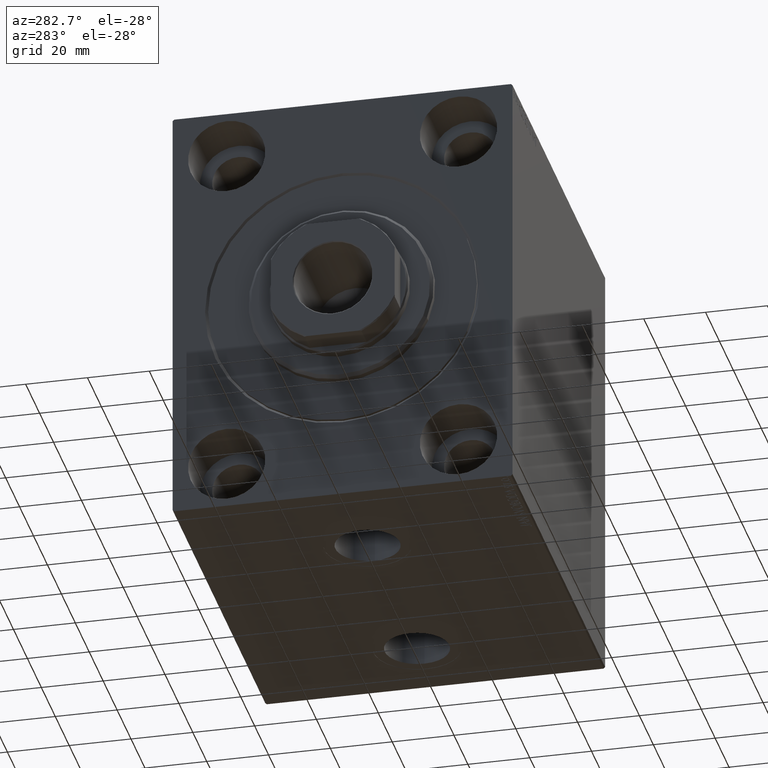
[diagram: clean part render]
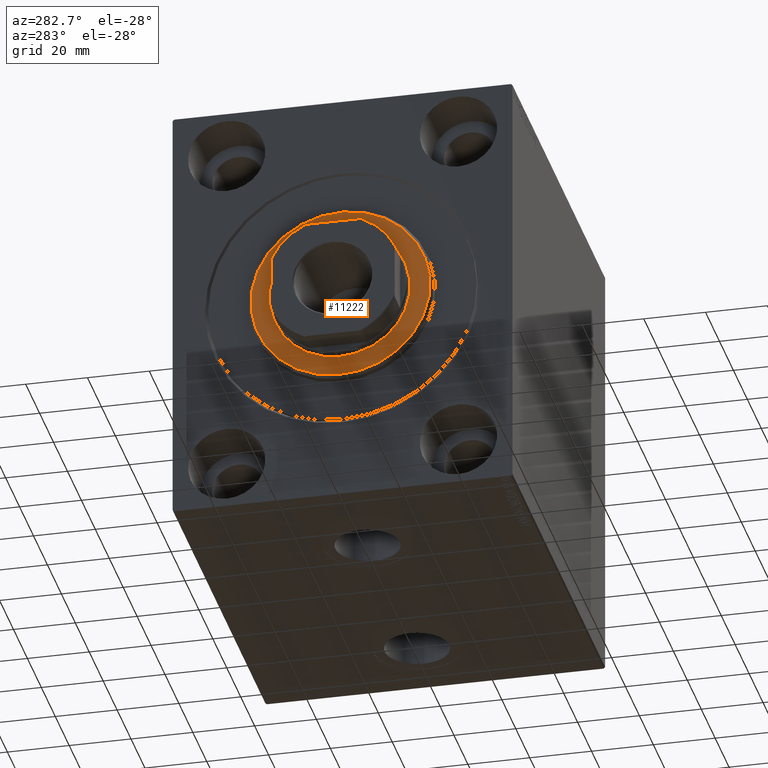
[diagram: same view with one face highlighted and labeled with its STEP entity id]
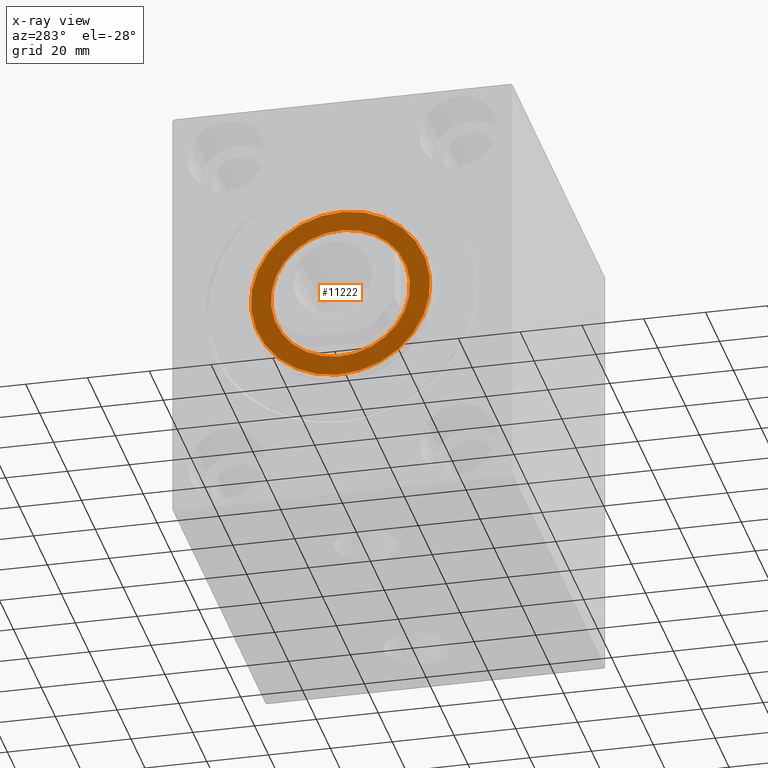
[diagram: x-ray of the same camera — body ghosted, the highlighted face saturated]
A machine part, auxiliary view. The second image highlights one B-rep face of the part: STEP entity #11222.
The next image is the same camera in x-ray: the body ghosted, the highlighted face saturated — about 0% of this face is hidden behind the body in this view.
In plain terms, the highlighted planar face has unit normal (-1, 0, 0).
Its self-contained STEP definition (entity closure, byte-faithful):
#62 = ORIENTED_EDGE ( 'NONE', *, *, #27249, .T. ) ;
#554 = EDGE_CURVE ( 'NONE', #34323, #2561, #41616, .T. ) ;
#1107 = DIRECTION ( 'NONE',  ( 0.000000000000000000, 0.000000000000000000, -1.000000000000000000 ) ) ;
#1869 = CARTESIAN_POINT ( 'NONE',  ( 3.000000000000000000, 0.000000000000000000, 0.000000000000000000 ) ) ;
#1995 = DIRECTION ( 'NONE',  ( 1.000000000000000000, -0.000000000000000000, 0.000000000000000000 ) ) ;
#2561 = VERTEX_POINT ( 'NONE', #41532 ) ;
#2911 = ORIENTED_EDGE ( 'NONE', *, *, #554, .T. ) ;
#3327 = EDGE_CURVE ( 'NONE', #19603, #23479, #18157, .T. ) ;
#8221 = CARTESIAN_POINT ( 'NONE',  ( 3.000000000000000000, 0.000000000000000000, 0.000000000000000000 ) ) ;
#10564 = CARTESIAN_POINT ( 'NONE',  ( 3.000000000000000000, 0.000000000000000000, 0.000000000000000000 ) ) ;
#11222 = ADVANCED_FACE ( 'NONE', ( #33734, #27937 ), #31261, .T. ) ;
#12705 = AXIS2_PLACEMENT_3D ( 'NONE', #22331, #25891, #28800 ) ;
#13378 = AXIS2_PLACEMENT_3D ( 'NONE', #10564, #31030, #14113 ) ;
#13758 = AXIS2_PLACEMENT_3D ( 'NONE', #8221, #1995, #1107 ) ;
#14113 = DIRECTION ( 'NONE',  ( 0.000000000000000000, 0.000000000000000000, -1.000000000000000000 ) ) ;
#15434 = DIRECTION ( 'NONE',  ( 1.000000000000000000, -0.000000000000000000, 0.000000000000000000 ) ) ;
#17114 = EDGE_CURVE ( 'NONE', #23479, #19603, #38335, .T. ) ;
#18116 = DIRECTION ( 'NONE',  ( 0.000000000000000000, 0.000000000000000000, -1.000000000000000000 ) ) ;
#18157 = CIRCLE ( 'NONE', #43044, 22.50000000000000355 ) ;
#19603 = VERTEX_POINT ( 'NONE', #24701 ) ;
#20974 = AXIS2_PLACEMENT_3D ( 'NONE', #1869, #15434, #18116 ) ;
#21234 = CARTESIAN_POINT ( 'NONE',  ( 3.000000000000000000, 3.612708057484691604E-15, -28.99999999999999289 ) ) ;
#21409 = EDGE_LOOP ( 'NONE', ( #39531, #41524 ) ) ;
#22331 = CARTESIAN_POINT ( 'NONE',  ( 3.000000000000000000, 0.000000000000000000, 0.000000000000000000 ) ) ;
#23479 = VERTEX_POINT ( 'NONE', #34282 ) ;
#23953 = DIRECTION ( 'NONE',  ( 0.000000000000000000, 0.000000000000000000, -1.000000000000000000 ) ) ;
#24173 = DIRECTION ( 'NONE',  ( 1.000000000000000000, 0.000000000000000000, 0.000000000000000000 ) ) ;
#24701 = CARTESIAN_POINT ( 'NONE',  ( 3.000000000000000000, 0.000000000000000000, -22.50000000000000355 ) ) ;
#25891 = DIRECTION ( 'NONE',  ( 1.000000000000000000, 0.000000000000000000, 0.000000000000000000 ) ) ;
#26304 = EDGE_LOOP ( 'NONE', ( #62, #2911 ) ) ;
#27249 = EDGE_CURVE ( 'NONE', #2561, #34323, #35814, .T. ) ;
#27937 = FACE_BOUND ( 'NONE', #21409, .T. ) ;
#28800 = DIRECTION ( 'NONE',  ( 0.000000000000000000, 0.000000000000000000, -1.000000000000000000 ) ) ;
#30837 = CARTESIAN_POINT ( 'NONE',  ( 3.000000000000000000, 0.000000000000000000, 0.000000000000000000 ) ) ;
#31030 = DIRECTION ( 'NONE',  ( 1.000000000000000000, -0.000000000000000000, 0.000000000000000000 ) ) ;
#31261 = PLANE ( 'NONE',  #13378 ) ;
#33734 = FACE_OUTER_BOUND ( 'NONE', #26304, .T. ) ;
#34282 = CARTESIAN_POINT ( 'NONE',  ( 3.000000000000000000, 2.755455298081545172E-15, 22.50000000000000355 ) ) ;
#34323 = VERTEX_POINT ( 'NONE', #21234 ) ;
#35814 = CIRCLE ( 'NONE', #13758, 28.99999999999999289 ) ;
#38335 = CIRCLE ( 'NONE', #12705, 22.50000000000000355 ) ;
#39531 = ORIENTED_EDGE ( 'NONE', *, *, #3327, .F. ) ;
#41524 = ORIENTED_EDGE ( 'NONE', *, *, #17114, .F. ) ;
#41532 = CARTESIAN_POINT ( 'NONE',  ( 3.000000000000000000, 0.000000000000000000, 28.99999999999999289 ) ) ;
#41616 = CIRCLE ( 'NONE', #20974, 28.99999999999999289 ) ;
#43044 = AXIS2_PLACEMENT_3D ( 'NONE', #30837, #24173, #23953 ) ;